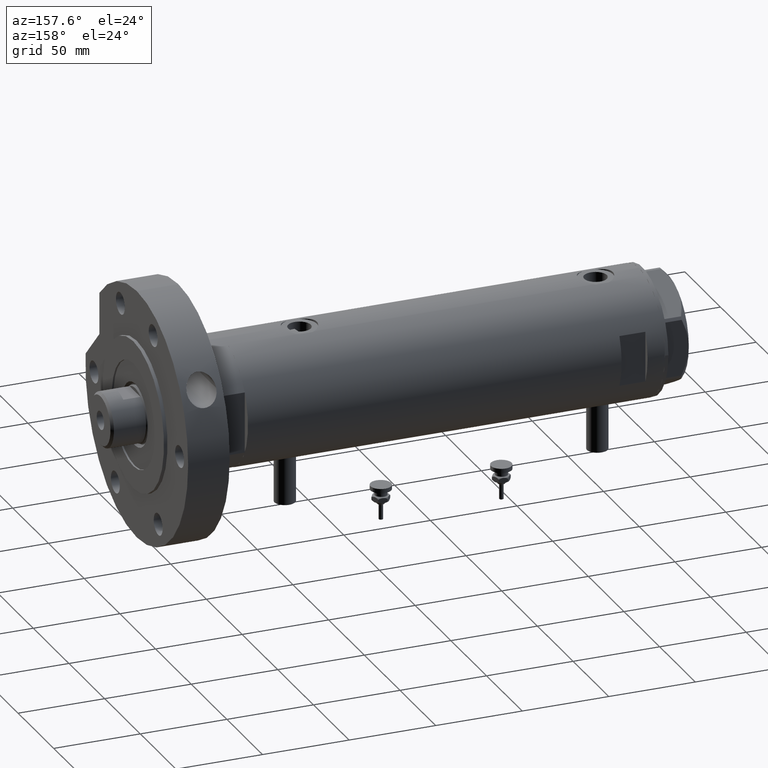
[diagram: clean part render]
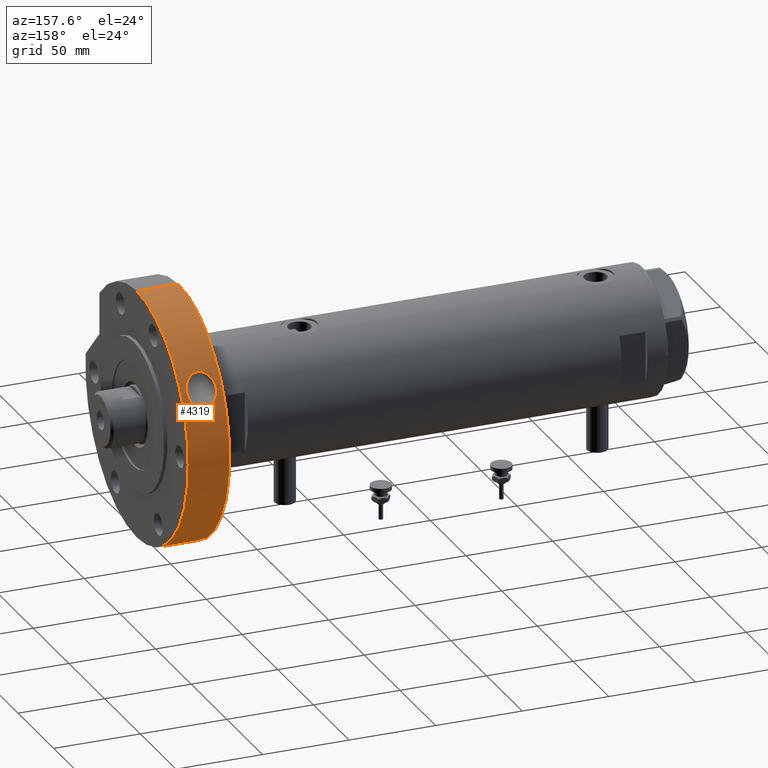
[diagram: same view with one face highlighted and labeled with its STEP entity id]
A machine part, auxiliary view. The second image highlights one B-rep face of the part: STEP entity #4319.
In plain terms, the highlighted cylindrical surface (partial cylindrical patch) has radius 72 mm, axis along (-1, -0, 0).
Its self-contained STEP definition (entity closure, byte-faithful):
#19 = EDGE_CURVE ( 'NONE', #7174, #1794, #5610, .T. ) ;
#30 = CARTESIAN_POINT ( 'NONE',  ( 40.55535982162631825, -59.49243009376699121, 19.83664204602017023 ) ) ;
#35 = CARTESIAN_POINT ( 'NONE',  ( 29.08415257283938971, -65.86442352484361606, 9.632105898931170529 ) ) ;
#46 = DIRECTION ( 'NONE',  ( -1.000000000000000000, 0.000000000000000000, 0.000000000000000000 ) ) ;
#65 = CARTESIAN_POINT ( 'NONE',  ( 41.49908336381589180, -58.83792510275270615, 19.36820309353371883 ) ) ;
#92 = VERTEX_POINT ( 'NONE', #3440 ) ;
#102 = CARTESIAN_POINT ( 'NONE',  ( 42.60876649164592322, -58.03932517436812333, 5.394038719900667189 ) ) ;
#188 = ORIENTED_EDGE ( 'NONE', *, *, #7285, .T. ) ;
#458 = CIRCLE ( 'NONE', #3040, 72.00000000000000000 ) ;
#485 = CARTESIAN_POINT ( 'NONE',  ( 29.00635689832104092, -65.89867888152741671, 9.919353986765916176 ) ) ;
#523 = CARTESIAN_POINT ( 'NONE',  ( 34.45426912811101516, -63.22169586661763674, 20.03040608222976360 ) ) ;
#551 = CARTESIAN_POINT ( 'NONE',  ( 42.59353667870883697, -58.05202042927008677, 18.63480627904116815 ) ) ;
#587 = EDGE_CURVE ( 'NONE', #1512, #4621, #1175, .T. ) ;
#597 = CARTESIAN_POINT ( 'NONE',  ( 38.30699801771393709, -60.96671213009859969, 20.45032427420614241 ) ) ;
#601 = CARTESIAN_POINT ( 'NONE',  ( 28.75204309832751548, -66.00999938663052546, 12.26850533341482219 ) ) ;
#671 = CARTESIAN_POINT ( 'NONE',  ( 42.81561407711841127, -57.88682942795768582, 5.567154619353554601 ) ) ;
#718 = CARTESIAN_POINT ( 'NONE',  ( 37.78615324147151711, -61.29106550574034884, 20.49999999999999645 ) ) ;
#891 = AXIS2_PLACEMENT_3D ( 'NONE', #1640, #948, #1061 ) ;
#948 = DIRECTION ( 'NONE',  ( 0.000000000000000000, 0.000000000000000000, 1.000000000000000000 ) ) ;
#1001 = CARTESIAN_POINT ( 'NONE',  ( 35.97726483290303179, -62.36763605633432661, 3.592321503926275916 ) ) ;
#1039 = CARTESIAN_POINT ( 'NONE',  ( 37.00047172579567700, -61.76610893582535766, 3.500000000000003997 ) ) ;
#1061 = DIRECTION ( 'NONE',  ( 1.000000000000000000, 0.000000000000000000, 0.000000000000000000 ) ) ;
#1072 = CARTESIAN_POINT ( 'NONE',  ( -72.00000000000000000, 0.000000000000000000, 24.00000000000000000 ) ) ;
#1115 = CARTESIAN_POINT ( 'NONE',  ( 35.21360668938278593, -62.80195673712638182, 20.25589324777633848 ) ) ;
#1155 = CARTESIAN_POINT ( 'NONE',  ( 32.53466902640644776, -64.23054519124976025, 19.07539165214923216 ) ) ;
#1175 = LINE ( 'NONE', #5824, #1683 ) ;
#1184 = CARTESIAN_POINT ( 'NONE',  ( 45.49220547745105847, -55.80740370366310543, 9.888252943984900512 ) ) ;
#1227 = CARTESIAN_POINT ( 'NONE',  ( 33.73698308241331745, -63.60730797195324016, 4.256682906402647681 ) ) ;
#1301 = CARTESIAN_POINT ( 'NONE',  ( 39.82450719299651354, -59.98628528028984874, 20.11851852717635936 ) ) ;
#1445 = EDGE_CURVE ( 'NONE', #1794, #4621, #458, .T. ) ;
#1512 = VERTEX_POINT ( 'NONE', #2678 ) ;
#1640 = CARTESIAN_POINT ( 'NONE',  ( 0.000000000000000000, 0.000000000000000000, 24.00000000000000000 ) ) ;
#1655 = CARTESIAN_POINT ( 'NONE',  ( 32.31978125835622251, -64.34053731328739900, 5.056525672619237355 ) ) ;
#1683 = VECTOR ( 'NONE', #6524, 1000.000000000000000 ) ;
#1688 = CARTESIAN_POINT ( 'NONE',  ( 30.52283992323973649, -65.21035691069059226, 6.800279941843450082 ) ) ;
#1690 = ORIENTED_EDGE ( 'NONE', *, *, #19, .T. ) ;
#1729 = CARTESIAN_POINT ( 'NONE',  ( 34.70727491178492130, -63.08319058421367487, 20.11406968118408756 ) ) ;
#1784 = FACE_OUTER_BOUND ( 'NONE', #5839, .T. ) ;
#1794 = VERTEX_POINT ( 'NONE', #4809 ) ;
#1802 = CARTESIAN_POINT ( 'NONE',  ( 37.25305468567555067, -61.61339072463116651, 20.49999999999999645 ) ) ;
#1807 = VECTOR ( 'NONE', #7396, 1000.000000000000000 ) ;
#1841 = CARTESIAN_POINT ( 'NONE',  ( 45.48052885682057678, -55.81692305030448864, 14.15672579315154778 ) ) ;
#2070 = CARTESIAN_POINT ( 'NONE',  ( 41.95881950458055343, -58.51097259000074757, 4.916492966899859596 ) ) ;
#2161 = CARTESIAN_POINT ( 'NONE',  ( 36.74629401143518947, -61.91767066798852426, 3.511232772259106127 ) ) ;
#2233 = CARTESIAN_POINT ( 'NONE',  ( 29.73065686525130502, -65.57557200089826210, 7.999855544294678822 ) ) ;
#2268 = CARTESIAN_POINT ( 'NONE',  ( 30.49664639368819863, -65.22260868274662471, 17.16569201939108069 ) ) ;
#2279 = ORIENTED_EDGE ( 'NONE', *, *, #587, .F. ) ;
#2304 = CARTESIAN_POINT ( 'NONE',  ( 31.04918756707116501, -64.96145576172190772, 17.81741921488061564 ) ) ;
#2339 = CARTESIAN_POINT ( 'NONE',  ( 45.11176080537858013, -56.11553796992718190, 8.747617782525978214 ) ) ;
#2343 = CARTESIAN_POINT ( 'NONE',  ( 28.91794561199050051, -65.93758356824439204, 13.74250568271680706 ) ) ;
#2377 = CARTESIAN_POINT ( 'NONE',  ( 45.76970208577891697, -55.57997309088483462, 12.02420235115481084 ) ) ;
#2381 = CARTESIAN_POINT ( 'NONE',  ( 29.06855133613443698, -65.87130724073733745, 14.31337779915958386 ) ) ;
#2419 = B_SPLINE_CURVE_WITH_KNOTS ( 'NONE', 3,
 ( #7435, #1039, #2161, #3910, #1001, #6236, #3347, #6846, #1227, #2844, #3408, #1655, #4619, #4017, #5162, #6959, #1688, #3982, #2233, #5728, #7511, #35, #485, #5196, #7471, #601, #7580, #7545, #2343, #2381, #5886, #4668, #5841, #4707, #2268, #4585, #2304, #6917, #6461, #6390, #7041, #1155, #6352, #5125, #523, #1729, #1115, #3450, #3521, #5767, #4549 ),
 .UNSPECIFIED., .F., .F.,
 ( 4, 2, 2, 2, 2, 2, 2, 2, 2, 2, 2, 2, 2, 2, 1, 2, 2, 2, 2, 2, 2, 2, 2, 2, 2, 4 ),
 ( 0.02939021571680408562, 0.03026989376783551997, 0.03114957181886695778, 0.03290892792092982994, 0.03378860597196126775, 0.03466828402299269862, 0.03642764012505557425, 0.03730731817608701206, 0.03818699622711844294, 0.03994635232918131856, 0.04082603038021274944, 0.04170570843124418725, 0.04346506453330704900, 0.04434474258433847987, 0.04522442063536991075, 0.04610409868640134162, 0.04698377673743277250, 0.04874313283949563425, 0.04962281089052705818, 0.05050248894155849599, 0.05138216699258992687, 0.05226184504362136468, 0.05402120114568425419, 0.05490087919671570588, 0.05578055724774716451, 0.05753991334981010952 ),
 .UNSPECIFIED. ) ;
#2436 = CARTESIAN_POINT ( 'NONE',  ( 0.000000000000000000, 0.000000000000000000, 24.00000000000000000 ) ) ;
#2459 = CARTESIAN_POINT ( 'NONE',  ( 42.18031169821635018, -58.35144859964461972, 5.068585157765424398 ) ) ;
#2500 = CARTESIAN_POINT ( 'NONE',  ( 40.79730924240784873, -59.32673968201848425, 19.73030942620755113 ) ) ;
#2678 = CARTESIAN_POINT ( 'NONE',  ( 72.00000000000000000, 8.817456953860941711E-15, 24.00000000000000000 ) ) ;
#2844 = CARTESIAN_POINT ( 'NONE',  ( 33.25651262700987587, -63.85983105858863951, 4.493378209568548165 ) ) ;
#2879 = EDGE_LOOP ( 'NONE', ( #188, #6962 ) ) ;
#2911 = CARTESIAN_POINT ( 'NONE',  ( 43.76578223650902544, -57.17283791773290602, 17.49083429610893248 ) ) ;
#2948 = CARTESIAN_POINT ( 'NONE',  ( 45.66557539476328031, -55.66558378621564174, 13.25512771356502739 ) ) ;
#3040 = AXIS2_PLACEMENT_3D ( 'NONE', #5877, #4121, #4770 ) ;
#3059 = EDGE_CURVE ( 'NONE', #92, #5548, #2419, .T. ) ;
#3060 = CARTESIAN_POINT ( 'NONE',  ( 42.17022360762358346, -58.36072003170739464, 18.95328377427734168 ) ) ;
#3226 = CIRCLE ( 'NONE', #891, 72.00000000000000000 ) ;
#3347 = CARTESIAN_POINT ( 'NONE',  ( 34.71539994104491456, -63.08051747351339600, 3.870686295575394897 ) ) ;
#3408 = CARTESIAN_POINT ( 'NONE',  ( 33.01756000664113344, -63.98366183484253611, 4.625358284309986523 ) ) ;
#3413 = ORIENTED_EDGE ( 'NONE', *, *, #1445, .T. ) ;
#3440 = CARTESIAN_POINT ( 'NONE',  ( 37.25305468567560041, -61.61339072463129440, 3.499999999999105160 ) ) ;
#3450 = CARTESIAN_POINT ( 'NONE',  ( 35.46738418615990440, -62.65900123149421574, 20.31433777791299633 ) ) ;
#3482 = CARTESIAN_POINT ( 'NONE',  ( 45.62240319082295059, -55.70101789411260285, 10.48438560392470187 ) ) ;
#3521 = CARTESIAN_POINT ( 'NONE',  ( 36.23024916643659310, -62.22308374458915381, 20.45406388325173808 ) ) ;
#3560 = CARTESIAN_POINT ( 'NONE',  ( 45.73459439260379611, -55.60889200603636340, 12.63979251166938589 ) ) ;
#3716 = CARTESIAN_POINT ( 'NONE',  ( 39.32849377424928150, -60.31286481305685498, 3.740719024890308830 ) ) ;
#3762 = B_SPLINE_CURVE_WITH_KNOTS ( 'NONE', 3,
 ( #1802, #718, #597, #4774, #1301, #30, #2500, #5386, #65, #3060, #551, #4736, #2911, #7576, #5799, #4199, #4054, #4823, #1841, #7159, #2948, #3560, #2377, #6385, #7074, #3482, #1184, #6539, #5231, #2339, #5344, #4664, #5921, #4164, #4124, #6457, #671, #102, #2459, #2070, #4856, #4234, #4386, #3716, #4310, #6038, #7237 ),
 .UNSPECIFIED., .F., .F.,
 ( 4, 2, 2, 2, 2, 2, 2, 2, 2, 2, 2, 1, 2, 2, 2, 2, 2, 2, 2, 2, 2, 2, 2, 4 ),
 ( 0.000000000000000000, 0.001836888482300250364, 0.003673776964600500728, 0.004592221205750627970, 0.005510665446900754778, 0.007347553929200997987, 0.009184442411501240328, 0.01102133089380148354, 0.01193977513495160514, 0.01285821937610172674, 0.01377666361725185008, 0.01469510785840197169, 0.01561355209955209156, 0.01653199634070221663, 0.01745044058185233823, 0.01836888482300245984, 0.02020577330530272386, 0.02112421754645285588, 0.02204266178760298442, 0.02296110602875311643, 0.02387955026990325191, 0.02571643875220352982, 0.02755332723450380772, 0.02939021571680408562 ),
 .UNSPECIFIED. ) ;
#3910 = CARTESIAN_POINT ( 'NONE',  ( 36.23465194872617445, -62.21847043024283153, 3.557320846253936963 ) ) ;
#3982 = CARTESIAN_POINT ( 'NONE',  ( 30.01824935507286440, -65.44495646918980469, 7.501210212168083480 ) ) ;
#4017 = CARTESIAN_POINT ( 'NONE',  ( 31.27352012586579733, -64.85382009274681536, 5.952531052330813921 ) ) ;
#4054 = CARTESIAN_POINT ( 'NONE',  ( 45.20671468579028840, -56.03898834811881358, 15.01309001103629370 ) ) ;
#4121 = DIRECTION ( 'NONE',  ( 0.000000000000000000, 0.000000000000000000, 1.000000000000000000 ) ) ;
#4124 = CARTESIAN_POINT ( 'NONE',  ( 43.40638026838229280, -57.44510177972425424, 6.129481079826254231 ) ) ;
#4164 = CARTESIAN_POINT ( 'NONE',  ( 43.77479453657668529, -57.16485747176126608, 6.541674484232436804 ) ) ;
#4199 = CARTESIAN_POINT ( 'NONE',  ( 45.09591932426694427, -56.12827467954599570, 15.29043872856080455 ) ) ;
#4234 = CARTESIAN_POINT ( 'NONE',  ( 40.81373697039469306, -59.31766562655266029, 4.264034306990527767 ) ) ;
#4310 = CARTESIAN_POINT ( 'NONE',  ( 38.30097516125960055, -60.97054523461152087, 3.548666832206867294 ) ) ;
#4319 = ADVANCED_FACE ( 'NONE', ( #1784, #5283 ), #5321, .T. ) ;
#4386 = CARTESIAN_POINT ( 'NONE',  ( 39.83831785468456843, -59.97712073266929877, 3.885812555585273387 ) ) ;
#4549 = CARTESIAN_POINT ( 'NONE',  ( 37.25305468567555067, -61.61339072463116651, 20.49999999999999645 ) ) ;
#4585 = CARTESIAN_POINT ( 'NONE',  ( 30.67543644657039792, -65.13877786748642507, 17.39122173978718422 ) ) ;
#4619 = CARTESIAN_POINT ( 'NONE',  ( 31.88309199038486597, -64.55751398461582369, 5.387862860533239484 ) ) ;
#4621 = VERTEX_POINT ( 'NONE', #5227 ) ;
#4664 = CARTESIAN_POINT ( 'NONE',  ( 44.45283693112637735, -56.64030208738944339, 7.446544986572366298 ) ) ;
#4668 = CARTESIAN_POINT ( 'NONE',  ( 29.35484689866834529, -65.74427423251073321, 15.15494988668413434 ) ) ;
#4707 = CARTESIAN_POINT ( 'NONE',  ( 29.99402748634104654, -65.45605253699612547, 16.45984666869452795 ) ) ;
#4736 = CARTESIAN_POINT ( 'NONE',  ( 43.38997029692270502, -57.45917611968581440, 17.90590120631456728 ) ) ;
#4759 = ORIENTED_EDGE ( 'NONE', *, *, #7506, .F. ) ;
#4770 = DIRECTION ( 'NONE',  ( 1.000000000000000000, 0.000000000000000000, 0.000000000000000000 ) ) ;
#4774 = CARTESIAN_POINT ( 'NONE',  ( 39.32617925474130516, -60.31432425475232861, 20.25959632231028351 ) ) ;
#4809 = CARTESIAN_POINT ( 'NONE',  ( -72.00000000000000000, 0.000000000000000000, 0.000000000000000000 ) ) ;
#4823 = CARTESIAN_POINT ( 'NONE',  ( 45.39879044110979578, -55.88349572322081826, 14.44671367647948124 ) ) ;
#4856 = CARTESIAN_POINT ( 'NONE',  ( 41.28289832670945003, -58.99176295322688190, 4.497231317432801134 ) ) ;
#5082 = CARTESIAN_POINT ( 'NONE',  ( -72.00000000000000000, 0.000000000000000000, 24.00000000000000000 ) ) ;
#5125 = CARTESIAN_POINT ( 'NONE',  ( 33.71000229521905567, -63.62353104685350758, 19.74462843068962670 ) ) ;
#5162 = CARTESIAN_POINT ( 'NONE',  ( 31.07795181527490769, -64.94770163941818453, 6.152097324367647779 ) ) ;
#5196 = CARTESIAN_POINT ( 'NONE',  ( 28.81967074639244686, -65.98064150524234606, 10.78489331907835158 ) ) ;
#5227 = CARTESIAN_POINT ( 'NONE',  ( 72.00000000000000000, 8.817456953860941711E-15, 0.000000000000000000 ) ) ;
#5231 = CARTESIAN_POINT ( 'NONE',  ( 45.22201882420395691, -56.02663591289872613, 9.027507984199626634 ) ) ;
#5262 = AXIS2_PLACEMENT_3D ( 'NONE', #2436, #6517, #46 ) ;
#5283 = FACE_BOUND ( 'NONE', #2879, .T. ) ;
#5321 = CYLINDRICAL_SURFACE ( 'NONE', #5262, 72.00000000000000000 ) ;
#5344 = CARTESIAN_POINT ( 'NONE',  ( 44.74466099791459328, -56.40933939203529235, 7.941078626036706112 ) ) ;
#5386 = CARTESIAN_POINT ( 'NONE',  ( 41.26929580741897752, -58.99938733816136960, 19.49594766789685707 ) ) ;
#5548 = VERTEX_POINT ( 'NONE', #6859 ) ;
#5610 = LINE ( 'NONE', #5082, #1807 ) ;
#5728 = CARTESIAN_POINT ( 'NONE',  ( 29.37487662170411085, -65.73532934184432008, 8.795516180230050551 ) ) ;
#5767 = CARTESIAN_POINT ( 'NONE',  ( 36.74245744138011815, -61.92211106675786425, 20.50000000000000000 ) ) ;
#5799 = CARTESIAN_POINT ( 'NONE',  ( 44.72431893664842306, -56.42549005960322717, 16.09637175496272121 ) ) ;
#5824 = CARTESIAN_POINT ( 'NONE',  ( 72.00000000000000000, 8.817456953860941711E-15, 24.00000000000000000 ) ) ;
#5839 = EDGE_LOOP ( 'NONE', ( #2279, #4759, #1690, #3413 ) ) ;
#5841 = CARTESIAN_POINT ( 'NONE',  ( 29.70783044460790023, -65.58590804044537492, 15.95741977668832234 ) ) ;
#5877 = CARTESIAN_POINT ( 'NONE',  ( 0.000000000000000000, 0.000000000000000000, 0.000000000000000000 ) ) ;
#5886 = CARTESIAN_POINT ( 'NONE',  ( 29.24952610786453278, -65.79114694889011616, 14.87773213215831625 ) ) ;
#5921 = CARTESIAN_POINT ( 'NONE',  ( 43.95196950987087803, -57.02866830943355581, 6.760272486714399065 ) ) ;
#6038 = CARTESIAN_POINT ( 'NONE',  ( 37.78048256600570198, -61.29449414326133905, 3.499999999999997780 ) ) ;
#6236 = CARTESIAN_POINT ( 'NONE',  ( 35.21514128816860989, -62.80315495660375547, 3.731765681152166891 ) ) ;
#6352 = CARTESIAN_POINT ( 'NONE',  ( 33.22934230317615345, -63.87551414266904004, 19.50713392091274301 ) ) ;
#6385 = CARTESIAN_POINT ( 'NONE',  ( 45.73808349374287729, -55.60602055685950518, 11.40810934084659145 ) ) ;
#6390 = CARTESIAN_POINT ( 'NONE',  ( 31.86537582296222126, -64.56514943663744077, 18.58027906044754118 ) ) ;
#6457 = CARTESIAN_POINT ( 'NONE',  ( 43.21441945009098617, -57.58971940905605891, 5.934878664015077909 ) ) ;
#6461 = CARTESIAN_POINT ( 'NONE',  ( 31.65296793163705047, -64.66947558321768952, 18.40054964456330922 ) ) ;
#6517 = DIRECTION ( 'NONE',  ( -0.000000000000000000, -0.000000000000000000, -1.000000000000000000 ) ) ;
#6524 = DIRECTION ( 'NONE',  ( -0.000000000000000000, -0.000000000000000000, -1.000000000000000000 ) ) ;
#6539 = CARTESIAN_POINT ( 'NONE',  ( 45.41184439664455397, -55.87288525526589211, 9.597033359088248616 ) ) ;
#6846 = CARTESIAN_POINT ( 'NONE',  ( 33.97982076943237217, -63.47794459436669001, 4.151127599678521740 ) ) ;
#6859 = CARTESIAN_POINT ( 'NONE',  ( 37.25305468567555067, -61.61339072463116651, 20.49999999999999645 ) ) ;
#6917 = CARTESIAN_POINT ( 'NONE',  ( 31.24487509099359528, -64.86762853409885565, 18.01911832109357903 ) ) ;
#6959 = CARTESIAN_POINT ( 'NONE',  ( 30.70317007206186588, -65.12571216348787573, 6.575161503598001111 ) ) ;
#6962 = ORIENTED_EDGE ( 'NONE', *, *, #3059, .T. ) ;
#7041 = CARTESIAN_POINT ( 'NONE',  ( 32.30648299621490338, -64.34556592749203219, 18.91798992208855879 ) ) ;
#7074 = CARTESIAN_POINT ( 'NONE',  ( 45.67244930799022740, -55.65994231096131273, 10.79176052875930303 ) ) ;
#7159 = CARTESIAN_POINT ( 'NONE',  ( 45.61381037297560681, -55.70805782970650455, 13.56222972733955956 ) ) ;
#7174 = VERTEX_POINT ( 'NONE', #1072 ) ;
#7237 = CARTESIAN_POINT ( 'NONE',  ( 37.25305468567560041, -61.61339072463129440, 3.499999999999105160 ) ) ;
#7285 = EDGE_CURVE ( 'NONE', #5548, #92, #3762, .T. ) ;
#7396 = DIRECTION ( 'NONE',  ( -0.000000000000000000, -0.000000000000000000, -1.000000000000000000 ) ) ;
#7435 = CARTESIAN_POINT ( 'NONE',  ( 37.25305468567560041, -61.61339072463129440, 3.499999999999105160 ) ) ;
#7471 = CARTESIAN_POINT ( 'NONE',  ( 28.75524000848917794, -66.00860684379242116, 11.37205238961558074 ) ) ;
#7506 = EDGE_CURVE ( 'NONE', #7174, #1512, #3226, .T. ) ;
#7511 = CARTESIAN_POINT ( 'NONE',  ( 29.26896999206883976, -65.78250232959788946, 9.068741599877188975 ) ) ;
#7545 = CARTESIAN_POINT ( 'NONE',  ( 28.82719809388398602, -65.97722130843470723, 13.15884398017409573 ) ) ;
#7576 = CARTESIAN_POINT ( 'NONE',  ( 44.43108969934814212, -56.65735043636760082, 16.58701370841657408 ) ) ;
#7580 = CARTESIAN_POINT ( 'NONE',  ( 28.76691484987808067, -66.00352787197107318, 12.56869092054870407 ) ) ;